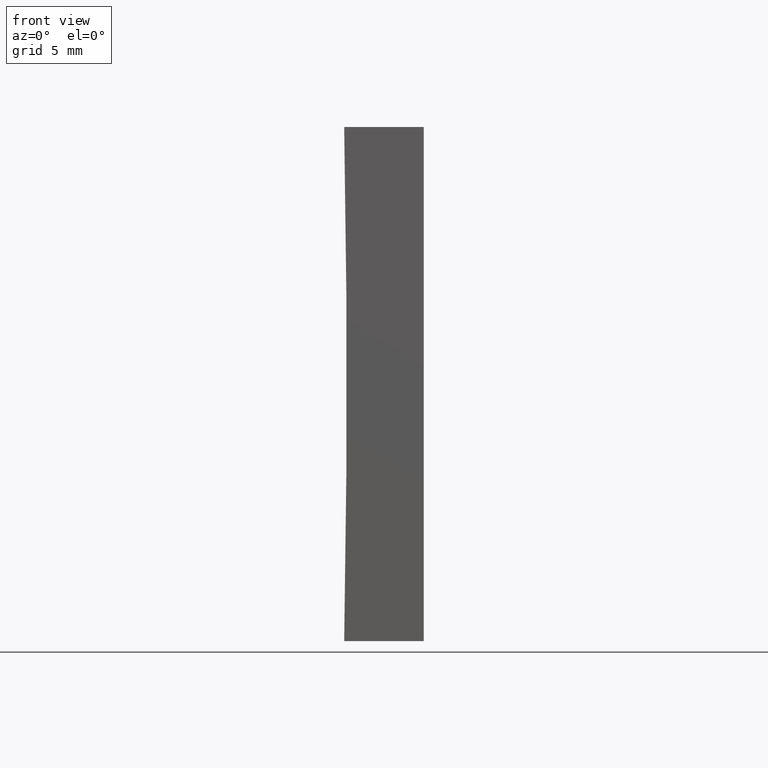
[diagram: clean part render]
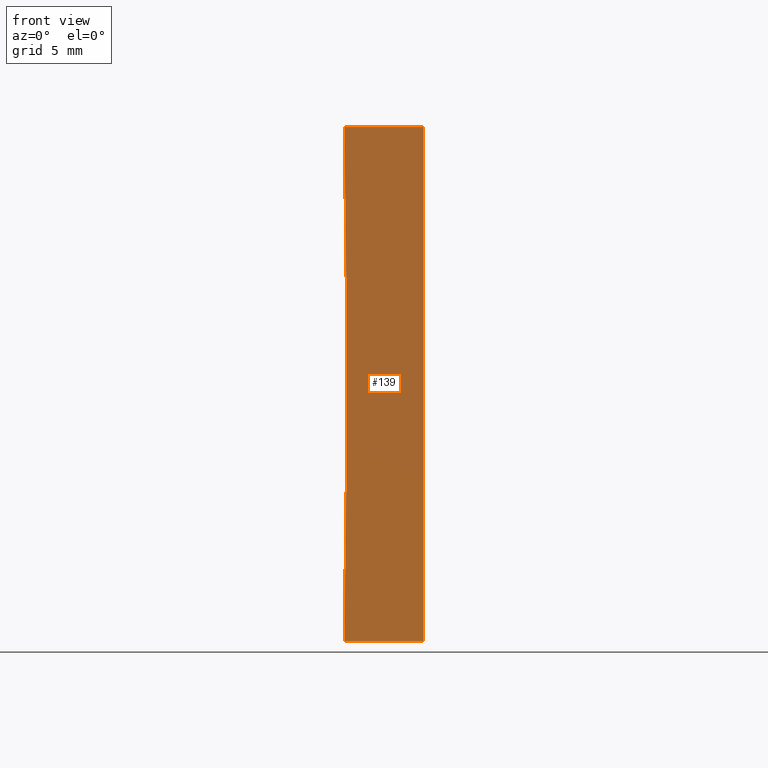
[diagram: same view with one face highlighted and labeled with its STEP entity id]
A machine part, front view. The second image highlights one B-rep face of the part: STEP entity #139.
In plain terms, the highlighted planar face has unit normal (0, 1, 0).
Its self-contained STEP definition (entity closure, byte-faithful):
#6 = ORIENTED_EDGE ( 'NONE', *, *, #164, .F. ) ;
#9 = PLANE ( 'NONE',  #186 ) ;
#11 = FACE_OUTER_BOUND ( 'NONE', #112, .T. ) ;
#13 = CARTESIAN_POINT ( 'NONE',  ( -519.7999999999999500, 0.0000000000000000000, 10.00000000000006600 ) ) ;
#15 = VERTEX_POINT ( 'NONE', #199 ) ;
#18 = VERTEX_POINT ( 'NONE', #132 ) ;
#26 = DIRECTION ( 'NONE',  ( 1.000000000000000000, -0.0000000000000000000, 1.120348000704782300E-015 ) ) ;
#33 = EDGE_CURVE ( 'NONE', #15, #130, #120, .T. ) ;
#48 = DIRECTION ( 'NONE',  ( -0.0000000000000000000, -1.000000000000000000, -0.0000000000000000000 ) ) ;
#50 = CARTESIAN_POINT ( 'NONE',  ( -519.7999999999999500, 0.0000000000000000000, 10.00000000000006600 ) ) ;
#53 = EDGE_CURVE ( 'NONE', #130, #18, #202, .T. ) ;
#54 = VECTOR ( 'NONE', #26, 1000.000000000000000 ) ;
#55 = CARTESIAN_POINT ( 'NONE',  ( 0.0000000000000000000, 0.0000000000000000000, 0.0000000000000000000 ) ) ;
#56 = ORIENTED_EDGE ( 'NONE', *, *, #187, .F. ) ;
#59 = DIRECTION ( 'NONE',  ( 0.0000000000000000000, -0.0000000000000000000, 1.000000000000000000 ) ) ;
#69 = DIRECTION ( 'NONE',  ( -1.000000000000000000, 0.0000000000000000000, 1.120348000704781900E-015 ) ) ;
#72 = VECTOR ( 'NONE', #69, 1000.000000000000000 ) ;
#73 = DIRECTION ( 'NONE',  ( 0.0000000000000000000, 1.000000000000000000, 0.0000000000000000000 ) ) ;
#89 = LINE ( 'NONE', #157, #72 ) ;
#97 = CARTESIAN_POINT ( 'NONE',  ( -3.096758283828839000, 0.0000000000000000000, 19.99999999999999600 ) ) ;
#111 = VERTEX_POINT ( 'NONE', #124 ) ;
#112 = EDGE_LOOP ( 'NONE', ( #56, #6, #174, #166 ) ) ;
#113 = DIRECTION ( 'NONE',  ( -6.123233995736766000E-017, -0.0000000000000000000, -1.000000000000000000 ) ) ;
#120 = CIRCLE ( 'NONE', #169, 516.7999999999999500 ) ;
#124 = CARTESIAN_POINT ( 'NONE',  ( 0.0000000000000000000, 0.0000000000000000000, 0.0000000000000000000 ) ) ;
#130 = VERTEX_POINT ( 'NONE', #97 ) ;
#132 = CARTESIAN_POINT ( 'NONE',  ( 1.224646799147353300E-015, 0.0000000000000000000, 20.00000000000000000 ) ) ;
#139 = ADVANCED_FACE ( 'NONE', ( #11 ), #9, .F. ) ;
#156 = LINE ( 'NONE', #55, #201 ) ;
#157 = CARTESIAN_POINT ( 'NONE',  ( 0.0000000000000000000, 0.0000000000000000000, 0.0000000000000000000 ) ) ;
#163 = DIRECTION ( 'NONE',  ( 0.0000000000000000000, 0.0000000000000000000, 1.000000000000000000 ) ) ;
#164 = EDGE_CURVE ( 'NONE', #18, #111, #156, .T. ) ;
#166 = ORIENTED_EDGE ( 'NONE', *, *, #33, .F. ) ;
#169 = AXIS2_PLACEMENT_3D ( 'NONE', #50, #48, #163 ) ;
#174 = ORIENTED_EDGE ( 'NONE', *, *, #53, .F. ) ;
#186 = AXIS2_PLACEMENT_3D ( 'NONE', #13, #73, #59 ) ;
#187 = EDGE_CURVE ( 'NONE', #111, #15, #89, .T. ) ;
#193 = CARTESIAN_POINT ( 'NONE',  ( 1.224646799147353300E-015, 0.0000000000000000000, 20.00000000000000000 ) ) ;
#199 = CARTESIAN_POINT ( 'NONE',  ( -3.096758283828826600, 0.0000000000000000000, 5.551115123125782700E-014 ) ) ;
#201 = VECTOR ( 'NONE', #113, 1000.000000000000000 ) ;
#202 = LINE ( 'NONE', #193, #54 ) ;